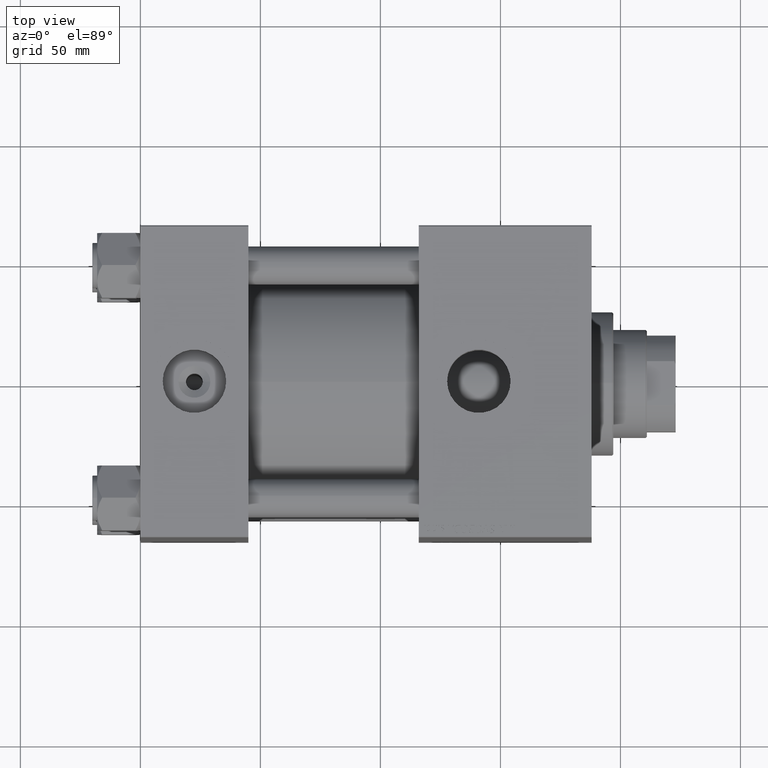
[diagram: clean part render]
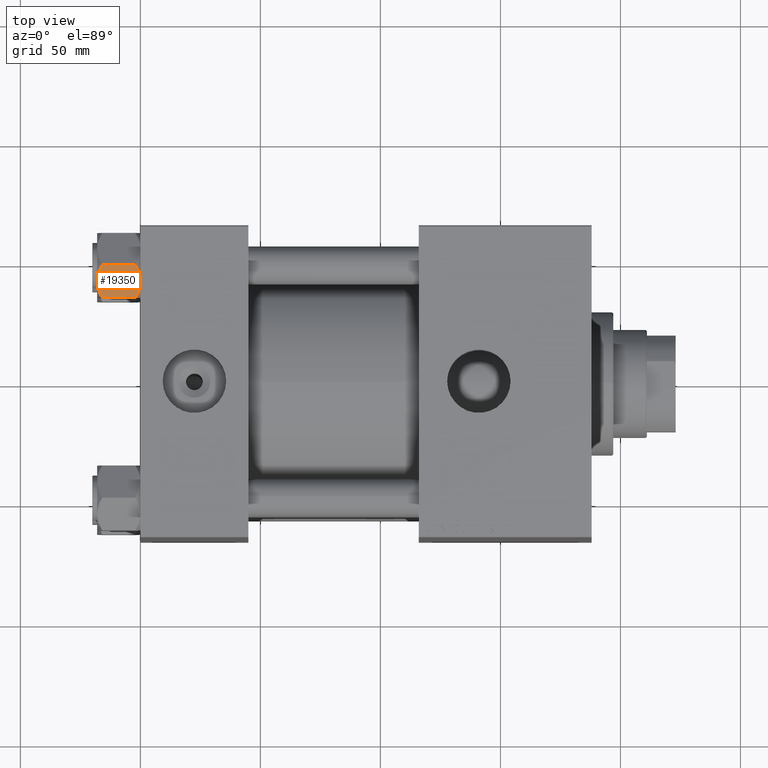
[diagram: same view with one face highlighted and labeled with its STEP entity id]
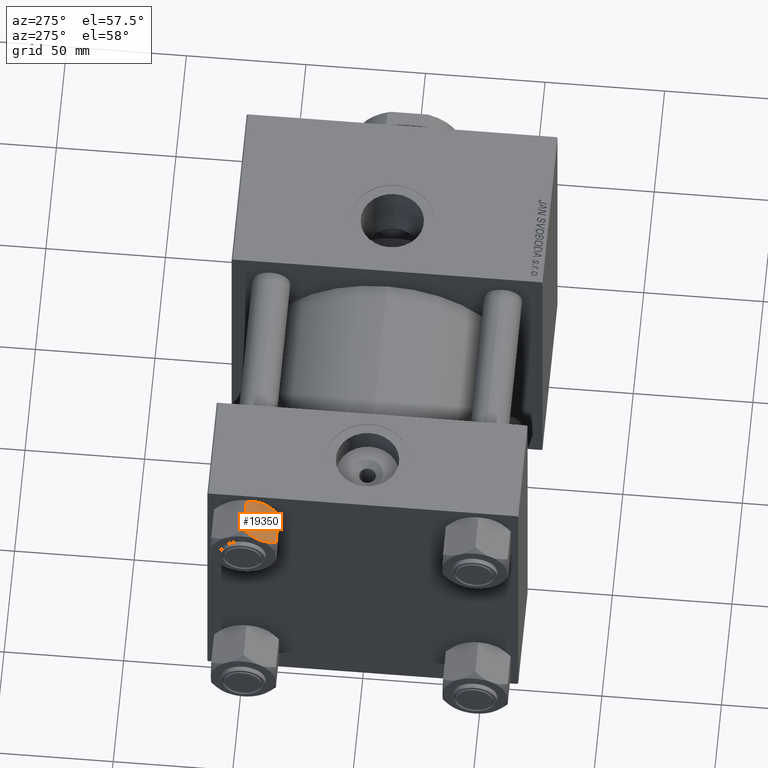
[diagram: same view with one face highlighted and labeled with its STEP entity id]
A machine part, top view. The second image highlights one B-rep face of the part: STEP entity #19350.
A second angle (auxiliary view) of the same face is appended — the face is thin or edge-on in the first view.
In plain terms, the highlighted planar face has unit normal (-0, 0.5, -0.866).
Its self-contained STEP definition (entity closure, byte-faithful):
#646 = CARTESIAN_POINT ( 'NONE',  ( 7.903528262322674358, -13.36532110482643176, -2.000000000000000000 ) ) ;
#1299 = PLANE ( 'NONE',  #42357 ) ;
#1515 = B_SPLINE_CURVE_WITH_KNOTS ( 'NONE', 3,
 ( #6855, #38080, #17644, #41422, #30167, #49607, #26335, #10458 ),
 .UNSPECIFIED., .F., .F.,
 ( 4, 2, 2, 4 ),
 ( 0.007890825462474425692, 0.01181022244528553977, 0.01376992093669109768, 0.01572961942809665559 ),
 .UNSPECIFIED. ) ;
#1666 = CARTESIAN_POINT ( 'NONE',  ( 9.114548888011784200, -11.26777185211904353, -0.9142282604026938930 ) ) ;
#1905 = CARTESIAN_POINT ( 'NONE',  ( 10.38662926516871998, -9.064464007571853443, -0.2430846701012968625 ) ) ;
#2871 = CARTESIAN_POINT ( 'NONE',  ( 12.38621571200405214, -5.601078687526937827, -17.94910618364697186 ) ) ;
#3359 = CARTESIAN_POINT ( 'NONE',  ( 7.810000000000002274, -13.52731680711293372, -1.999999999999998224 ) ) ;
#4330 = CARTESIAN_POINT ( 'NONE',  ( 15.62000000000000455, -1.379485931020374819E-15, -1.999999999999998224 ) ) ;
#4819 = EDGE_CURVE ( 'NONE', #30484, #10339, #23503, .T. ) ;
#5247 = CARTESIAN_POINT ( 'NONE',  ( 11.71500000000000341, -6.763658403556471299, 0.000000000000000000 ) ) ;
#5343 = ORIENTED_EDGE ( 'NONE', *, *, #24114, .T. ) ;
#5747 = CARTESIAN_POINT ( 'NONE',  ( 10.06459418565412456, -9.622245127110611307, -0.3836066851120584209 ) ) ;
#6272 = CARTESIAN_POINT ( 'NONE',  ( 7.903528262322685904, -13.36532110482641400, -16.00000000000000000 ) ) ;
#6855 = CARTESIAN_POINT ( 'NONE',  ( 11.71500000000000341, -6.763658403556471299, 0.000000000000000000 ) ) ;
#7361 = ORIENTED_EDGE ( 'NONE', *, *, #10086, .F. ) ;
#8371 = CARTESIAN_POINT ( 'NONE',  ( 10.40215497533437627, -9.037572688741342120, -17.80281335400753662 ) ) ;
#8468 = VECTOR ( 'NONE', #30957, 1000.000000000000114 ) ;
#8484 = VERTEX_POINT ( 'NONE', #19888 ) ;
#9017 = FACE_OUTER_BOUND ( 'NONE', #17972, .T. ) ;
#9129 = CARTESIAN_POINT ( 'NONE',  ( 11.71499999999999453, -6.763658403556466858, -18.00000000000000000 ) ) ;
#9370 = CARTESIAN_POINT ( 'NONE',  ( 11.04378428799594936, -7.926238119586006547, -0.05089381635301404999 ) ) ;
#9620 = CARTESIAN_POINT ( 'NONE',  ( 8.502393313253756801, -12.32805640973649197, -1.411989271640069044 ) ) ;
#10086 = EDGE_CURVE ( 'NONE', #28266, #46727, #1515, .T. ) ;
#10339 = VERTEX_POINT ( 'NONE', #24034 ) ;
#10458 = CARTESIAN_POINT ( 'NONE',  ( 15.52647173767732980, -0.1619957022865074481, -2.000000000000000000 ) ) ;
#12733 = VECTOR ( 'NONE', #31900, 1000.000000000000114 ) ;
#13041 = CARTESIAN_POINT ( 'NONE',  ( 15.62000000000000455, -1.379485931020374819E-15, -1.999999999999998224 ) ) ;
#13208 = CARTESIAN_POINT ( 'NONE',  ( 9.439480280627268627, -10.70497417113491245, -17.26828031537187513 ) ) ;
#14557 = ORIENTED_EDGE ( 'NONE', *, *, #4819, .F. ) ;
#14563 = CARTESIAN_POINT ( 'NONE',  ( 15.62000000000000455, -1.379485931020374819E-15, -1.999999999999998224 ) ) ;
#15147 = EDGE_CURVE ( 'NONE', #31764, #28266, #43998, .T. ) ;
#15342 = LINE ( 'NONE', #14563, #8468 ) ;
#16619 = VECTOR ( 'NONE', #43514, 1000.000000000000114 ) ;
#16946 = CARTESIAN_POINT ( 'NONE',  ( 15.62000000000000455, -1.379485931020374819E-15, -18.00000000000000000 ) ) ;
#16947 = LINE ( 'NONE', #17200, #48567 ) ;
#17200 = CARTESIAN_POINT ( 'NONE',  ( 15.62000000000000455, -1.379485931020374819E-15, -18.00000000000000000 ) ) ;
#17644 = CARTESIAN_POINT ( 'NONE',  ( 13.02784502466562699, -4.489744118371590709, -0.1971866459924545845 ) ) ;
#17972 = EDGE_LOOP ( 'NONE', ( #47509, #5343, #48882, #7361, #38603, #20735, #42835, #47580, #22167, #14557 ) ) ;
#18007 = CARTESIAN_POINT ( 'NONE',  ( 15.62000000000000455, -1.379485931020374819E-15, -16.00000000000000000 ) ) ;
#19350 = ADVANCED_FACE ( 'NONE', ( #9017 ), #1299, .F. ) ;
#19888 = CARTESIAN_POINT ( 'NONE',  ( 15.62000000000000455, -1.379485931020374819E-15, -16.00000000000000000 ) ) ;
#19929 = CARTESIAN_POINT ( 'NONE',  ( 15.52647173767732980, -0.1619957022865074481, -2.000000000000000000 ) ) ;
#20523 = EDGE_CURVE ( 'NONE', #46727, #25451, #23833, .T. ) ;
#20735 = ORIENTED_EDGE ( 'NONE', *, *, #22305, .F. ) ;
#21518 = DIRECTION ( 'NONE',  ( -0.5000000000000002220, -0.8660254037844384856, 0.000000000000000000 ) ) ;
#22167 = ORIENTED_EDGE ( 'NONE', *, *, #40016, .F. ) ;
#22305 = EDGE_CURVE ( 'NONE', #36684, #31764, #15342, .T. ) ;
#23503 = B_SPLINE_CURVE_WITH_KNOTS ( 'NONE', 3,
 ( #33370, #25954, #49742, #45642, #37449, #2871, #34375, #49237 ),
 .UNSPECIFIED., .F., .F.,
 ( 4, 2, 2, 4 ),
 ( 4.472842641925296111E-07, 0.003945636373369297914, 0.005918230917921852262, 0.007890825462474406610 ),
 .UNSPECIFIED. ) ;
#23833 = LINE ( 'NONE', #4330, #16619 ) ;
#23998 = CARTESIAN_POINT ( 'NONE',  ( 9.124083218049248600, -11.25125790807802595, -17.05261278537718184 ) ) ;
#24034 = CARTESIAN_POINT ( 'NONE',  ( 11.71499999999999453, -6.763658403556466858, -18.00000000000000000 ) ) ;
#24114 = EDGE_CURVE ( 'NONE', #8484, #25451, #16947, .T. ) ;
#24810 = CARTESIAN_POINT ( 'NONE',  ( 15.52647173767731736, -0.1619957022865265162, -16.00000000000000000 ) ) ;
#25451 = VERTEX_POINT ( 'NONE', #13041 ) ;
#25846 = VERTEX_POINT ( 'NONE', #6272 ) ;
#25954 = CARTESIAN_POINT ( 'NONE',  ( 14.92760668674624291, -1.199260397376471499, -16.58801072835992940 ) ) ;
#26234 = LINE ( 'NONE', #50027, #46743 ) ;
#26335 = CARTESIAN_POINT ( 'NONE',  ( 15.22736220980736022, -0.6800686015852294153, -1.706311779141445495 ) ) ;
#27515 = EDGE_CURVE ( 'NONE', #25846, #34489, #40324, .T. ) ;
#28266 = VERTEX_POINT ( 'NONE', #48083 ) ;
#28298 = CARTESIAN_POINT ( 'NONE',  ( 7.810000000000002274, -13.52731680711293372, -16.00000000000000000 ) ) ;
#28830 = CARTESIAN_POINT ( 'NONE',  ( 8.506059550806629233, -12.32170630002228684, -16.56553707812499709 ) ) ;
#29459 = DIRECTION ( 'NONE',  ( -0.8660254037844385966, 0.5000000000000003331, 0.000000000000000000 ) ) ;
#30167 = CARTESIAN_POINT ( 'NONE',  ( 14.30591678195076355, -2.276058899034900662, -0.9473872146228133895 ) ) ;
#30484 = VERTEX_POINT ( 'NONE', #24810 ) ;
#30538 = DIRECTION ( 'NONE',  ( -0.5000000000000002220, -0.8660254037844384856, 0.000000000000000000 ) ) ;
#30957 = DIRECTION ( 'NONE',  ( 0.5000000000000002220, 0.8660254037844384856, -0.000000000000000000 ) ) ;
#31764 = VERTEX_POINT ( 'NONE', #646 ) ;
#31900 = DIRECTION ( 'NONE',  ( -0.5000000000000002220, -0.8660254037844384856, 0.000000000000000000 ) ) ;
#31914 = CARTESIAN_POINT ( 'NONE',  ( 11.05297796109638142, -7.910314210667883650, -17.99999999999999289 ) ) ;
#32546 = DIRECTION ( 'NONE',  ( -0.000000000000000000, -0.000000000000000000, 1.000000000000000000 ) ) ;
#33370 = CARTESIAN_POINT ( 'NONE',  ( 15.52647173767731736, -0.1619957022865265162, -16.00000000000000000 ) ) ;
#33387 = VECTOR ( 'NONE', #30538, 1000.000000000000114 ) ;
#34375 = CARTESIAN_POINT ( 'NONE',  ( 12.04818928091285635, -6.186557640478069331, -17.99999999999998224 ) ) ;
#34420 = B_SPLINE_CURVE_WITH_KNOTS ( 'NONE', 3,
 ( #9129, #31914, #8371, #13208, #23998, #28830, #39590, #47531 ),
 .UNSPECIFIED., .F., .F.,
 ( 4, 2, 2, 4 ),
 ( 0.007890825462474406610, 0.01181022244528550855, 0.01376992093669106125, 0.01572961942809661395 ),
 .UNSPECIFIED. ) ;
#34489 = VERTEX_POINT ( 'NONE', #28298 ) ;
#36236 = CARTESIAN_POINT ( 'NONE',  ( 11.38181071908714515, -7.340759166634874155, 7.741881137904304113E-16 ) ) ;
#36684 = VERTEX_POINT ( 'NONE', #3359 ) ;
#37449 = CARTESIAN_POINT ( 'NONE',  ( 13.04337073483127796, -4.462852799541095372, -17.75691532989869614 ) ) ;
#38080 = CARTESIAN_POINT ( 'NONE',  ( 12.37702203890362540, -5.617002596445055396, 1.097754699641572845E-15 ) ) ;
#38603 = ORIENTED_EDGE ( 'NONE', *, *, #15147, .F. ) ;
#38629 = EDGE_CURVE ( 'NONE', #8484, #30484, #49988, .T. ) ;
#39590 = CARTESIAN_POINT ( 'NONE',  ( 8.202637790192655487, -12.84724820552769309, -16.29368822085855584 ) ) ;
#40016 = EDGE_CURVE ( 'NONE', #10339, #25846, #34420, .T. ) ;
#40324 = LINE ( 'NONE', #48017, #12733 ) ;
#40582 = CARTESIAN_POINT ( 'NONE',  ( 7.903528262322674358, -13.36532110482643176, -2.000000000000000000 ) ) ;
#41422 = CARTESIAN_POINT ( 'NONE',  ( 13.99051971937274352, -2.822342635978011938, -0.7317196846281139866 ) ) ;
#42357 = AXIS2_PLACEMENT_3D ( 'NONE', #16946, #29459, #21518 ) ;
#42835 = ORIENTED_EDGE ( 'NONE', *, *, #49131, .F. ) ;
#43514 = DIRECTION ( 'NONE',  ( 0.5000000000000002220, 0.8660254037844384856, -0.000000000000000000 ) ) ;
#43998 = B_SPLINE_CURVE_WITH_KNOTS ( 'NONE', 3,
 ( #40582, #9620, #1666, #5747, #1905, #9370, #36236, #5247 ),
 .UNSPECIFIED., .F., .F.,
 ( 4, 2, 2, 4 ),
 ( 4.472842641876105202E-07, 0.003945636373369308322, 0.005918230917921867007, 0.007890825462474425692 ),
 .UNSPECIFIED. ) ;
#45642 = CARTESIAN_POINT ( 'NONE',  ( 13.36540581434586983, -3.905071680002335288, -17.61639331488792948 ) ) ;
#46706 = DIRECTION ( 'NONE',  ( -0.000000000000000000, -0.000000000000000000, 1.000000000000000000 ) ) ;
#46727 = VERTEX_POINT ( 'NONE', #19929 ) ;
#46743 = VECTOR ( 'NONE', #46706, 1000.000000000000000 ) ;
#47509 = ORIENTED_EDGE ( 'NONE', *, *, #38629, .F. ) ;
#47531 = CARTESIAN_POINT ( 'NONE',  ( 7.903528262322685904, -13.36532110482641400, -16.00000000000000000 ) ) ;
#47580 = ORIENTED_EDGE ( 'NONE', *, *, #27515, .F. ) ;
#48017 = CARTESIAN_POINT ( 'NONE',  ( 15.62000000000000455, -1.379485931020374819E-15, -16.00000000000000000 ) ) ;
#48083 = CARTESIAN_POINT ( 'NONE',  ( 11.71500000000000341, -6.763658403556471299, 0.000000000000000000 ) ) ;
#48567 = VECTOR ( 'NONE', #32546, 1000.000000000000000 ) ;
#48882 = ORIENTED_EDGE ( 'NONE', *, *, #20523, .F. ) ;
#49131 = EDGE_CURVE ( 'NONE', #34489, #36684, #26234, .T. ) ;
#49237 = CARTESIAN_POINT ( 'NONE',  ( 11.71499999999999453, -6.763658403556466858, -18.00000000000000000 ) ) ;
#49607 = CARTESIAN_POINT ( 'NONE',  ( 14.92394044919338292, -1.205610507090636219, -1.434462921875003349 ) ) ;
#49742 = CARTESIAN_POINT ( 'NONE',  ( 14.31545111198821019, -2.259544954993912391, -17.08577173959730544 ) ) ;
#49988 = LINE ( 'NONE', #18007, #33387 ) ;
#50027 = CARTESIAN_POINT ( 'NONE',  ( 7.810000000000002274, -13.52731680711293372, -18.00000000000000000 ) ) ;